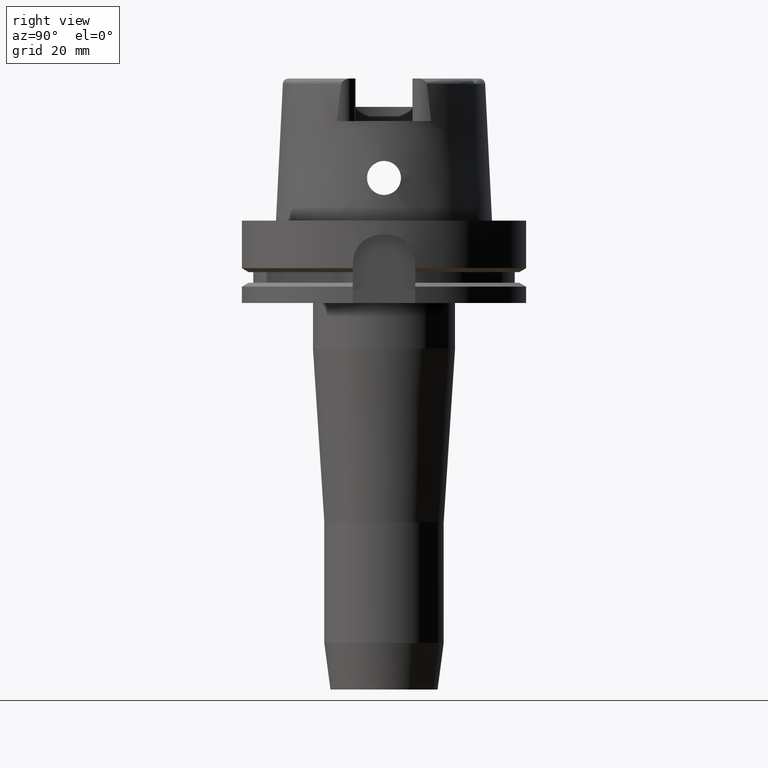
[diagram: clean part render]
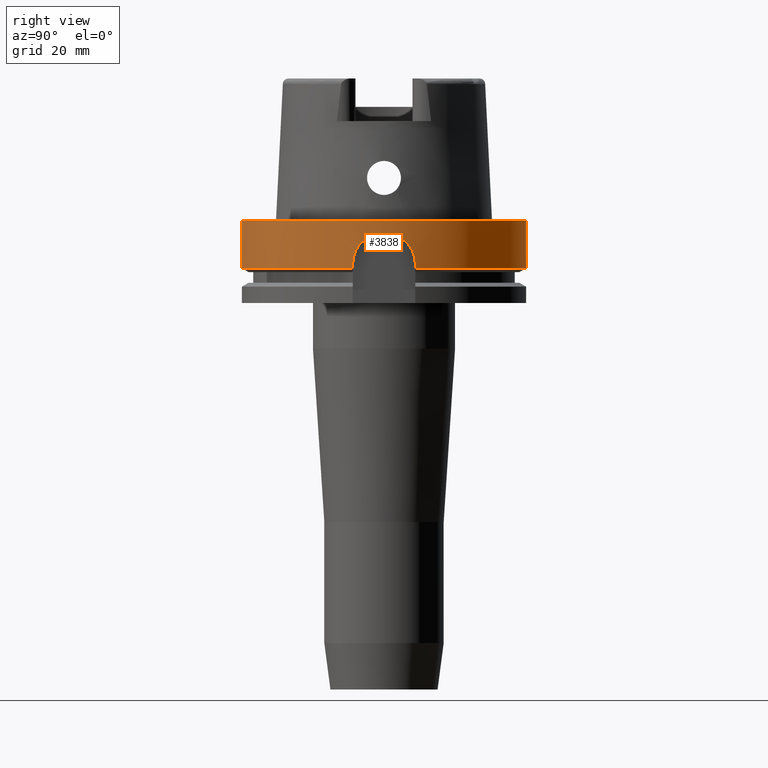
[diagram: same view with one face highlighted and labeled with its STEP entity id]
A machine part, right view. The second image highlights one B-rep face of the part: STEP entity #3838.
In plain terms, the highlighted cylindrical surface (partial cylindrical patch) has radius 50 mm, axis along (0, 0, 1).
Its self-contained STEP definition (entity closure, byte-faithful):
#1507=DIRECTION('',(0.E0,2.969006079282E-14,-1.E0));
#1508=VECTOR('',#1507,1.675240473581E1);
#1509=CARTESIAN_POINT('',(0.E0,-5.E1,0.E0));
#1510=LINE('',#1509,#1508);
#1559=CARTESIAN_POINT('',(4.877499359303E1,1.1E1,-1.675240473581E1));
#1564=CARTESIAN_POINT('',(0.E0,0.E0,-1.675240473581E1));
#1565=DIRECTION('',(0.E0,0.E0,1.E0));
#1566=DIRECTION('',(9.754998718606E-1,2.2E-1,0.E0));
#1567=AXIS2_PLACEMENT_3D('',#1564,#1565,#1566);
#1708=CARTESIAN_POINT('',(4.998999899980E1,-1.E0,-5.E0));
#1709=CARTESIAN_POINT('',(4.997502962949E1,-1.748318806849E0,-5.E0));
#1710=CARTESIAN_POINT('',(4.991282291674E1,-3.210848708994E0,
-5.162603876526E0));
#1711=CARTESIAN_POINT('',(4.972619797368E1,-5.360542516818E0,
-5.905628433817E0));
#1712=CARTESIAN_POINT('',(4.947833699748E1,-7.276984894297E0,
-7.107269275510E0));
#1713=CARTESIAN_POINT('',(4.921223922111E1,-8.879154896471E0,
-8.706220861721E0));
#1714=CARTESIAN_POINT('',(4.897561538632E1,-1.008542517917E1,
-1.061979061039E1));
#1715=CARTESIAN_POINT('',(4.881248014283E1,-1.083588691228E1,
-1.277872227288E1));
#1716=CARTESIAN_POINT('',(4.877499359303E1,-1.1E1,-1.424723863244E1));
#1717=CARTESIAN_POINT('',(4.877499359303E1,-1.1E1,-1.5E1));
#1722=DIRECTION('',(-5.027793947017E-13,6.690209687563E-14,-1.E0));
#1723=VECTOR('',#1722,1.752404735809E0);
#1724=CARTESIAN_POINT('',(4.877499359303E1,-1.1E1,-1.5E1));
#1725=LINE('',#1724,#1723);
#1729=DIRECTION('',(0.E0,-2.969006079282E-14,-1.E0));
#1730=VECTOR('',#1729,1.675240473581E1);
#1731=CARTESIAN_POINT('',(0.E0,5.E1,0.E0));
#1732=LINE('',#1731,#1730);
#1736=DIRECTION('',(4.946700496259E-13,7.095676941355E-14,1.E0));
#1737=VECTOR('',#1736,1.752404735809E0);
#1738=CARTESIAN_POINT('',(4.877499359303E1,1.1E1,-1.675240473581E1));
#1739=LINE('',#1738,#1737);
#1743=CARTESIAN_POINT('',(4.877499359303E1,1.1E1,-1.5E1));
#1744=CARTESIAN_POINT('',(4.877499359303E1,1.1E1,-1.425365513587E1));
#1745=CARTESIAN_POINT('',(4.881185785010E1,1.083857893683E1,-1.279589027066E1));
#1746=CARTESIAN_POINT('',(4.897289371045E1,1.009825143590E1,-1.064845195370E1));
#1747=CARTESIAN_POINT('',(4.920780651826E1,8.903126310452E0,-8.736917024229E0));
#1748=CARTESIAN_POINT('',(4.947350286983E1,7.309291985009E0,-7.133041447326E0));
#1749=CARTESIAN_POINT('',(4.972260453039E1,5.394314866085E0,-5.921156406450E0));
#1750=CARTESIAN_POINT('',(4.991155272931E1,3.234186037465E0,-5.166536640735E0));
#1751=CARTESIAN_POINT('',(4.997484892375E1,1.757352286679E0,-5.E0));
#1752=CARTESIAN_POINT('',(4.998999899980E1,1.E0,-5.E0));
#1757=CARTESIAN_POINT('',(0.E0,0.E0,-5.E0));
#1758=DIRECTION('',(0.E0,0.E0,1.E0));
#1759=DIRECTION('',(9.997999799960E-1,-2.E-2,0.E0));
#1760=AXIS2_PLACEMENT_3D('',#1757,#1758,#1759);
#1811=CARTESIAN_POINT('',(0.E0,0.E0,-1.675240473581E1));
#1812=DIRECTION('',(0.E0,0.E0,1.E0));
#1813=DIRECTION('',(0.E0,-1.E0,0.E0));
#1814=AXIS2_PLACEMENT_3D('',#1811,#1812,#1813);
#1965=CARTESIAN_POINT('',(0.E0,0.E0,0.E0));
#1966=DIRECTION('',(0.E0,0.E0,-1.E0));
#1967=DIRECTION('',(0.E0,1.E0,0.E0));
#1968=AXIS2_PLACEMENT_3D('',#1965,#1966,#1967);
#2514=CARTESIAN_POINT('',(0.E0,-5.E1,-1.675240473581E1));
#2515=VERTEX_POINT('',#2514);
#2516=CARTESIAN_POINT('',(4.877499359303E1,-1.1E1,-1.675240473581E1));
#2517=VERTEX_POINT('',#2516);
#2518=VERTEX_POINT('',#1559);
#2519=CARTESIAN_POINT('',(0.E0,5.E1,-1.675240473581E1));
#2520=VERTEX_POINT('',#2519);
#2522=CARTESIAN_POINT('',(0.E0,5.E1,0.E0));
#2523=VERTEX_POINT('',#2522);
#2524=CARTESIAN_POINT('',(0.E0,-5.E1,0.E0));
#2525=VERTEX_POINT('',#2524);
#2528=CARTESIAN_POINT('',(4.998999899980E1,-1.E0,-5.E0));
#2529=CARTESIAN_POINT('',(4.998999899980E1,1.E0,-5.E0));
#2530=VERTEX_POINT('',#2528);
#2531=VERTEX_POINT('',#2529);
#2532=VERTEX_POINT('',#1717);
#2533=CARTESIAN_POINT('',(4.877499359303E1,1.1E1,-1.5E1));
#2534=VERTEX_POINT('',#2533);
#3816=CARTESIAN_POINT('',(0.E0,0.E0,-1.7575E2));
#3817=DIRECTION('',(0.E0,0.E0,1.E0));
#3818=DIRECTION('',(0.E0,1.E0,0.E0));
#3819=AXIS2_PLACEMENT_3D('',#3816,#3817,#3818);
#3820=CYLINDRICAL_SURFACE('',#3819,5.E1);
#3822=ORIENTED_EDGE('',*,*,#3821,.F.);
#3824=ORIENTED_EDGE('',*,*,#3823,.T.);
#3825=ORIENTED_EDGE('',*,*,#3566,.T.);
#3827=ORIENTED_EDGE('',*,*,#3826,.F.);
#3828=ORIENTED_EDGE('',*,*,#3722,.F.);
#3830=ORIENTED_EDGE('',*,*,#3829,.F.);
#3831=ORIENTED_EDGE('',*,*,#3718,.T.);
#3832=ORIENTED_EDGE('',*,*,#3748,.F.);
#3833=ORIENTED_EDGE('',*,*,#3514,.T.);
#3835=ORIENTED_EDGE('',*,*,#3834,.T.);
#3836=EDGE_LOOP('',(#3822,#3824,#3825,#3827,#3828,#3830,#3831,#3832,#3833,
#3835));
#3837=FACE_OUTER_BOUND('',#3836,.F.);
#1568=CIRCLE('',#1567,5.E1);
#1718=B_SPLINE_CURVE_WITH_KNOTS('',3,(#1708,#1709,#1710,#1711,#1712,#1713,#1714,
#1715,#1716,#1717),.UNSPECIFIED.,.F.,.F.,(4,1,1,1,1,1,1,4),(0.E0,
1.428571428571E-1,2.857142857143E-1,4.285714285714E-1,5.714285714286E-1,
7.142857142857E-1,8.571428571429E-1,1.E0),.UNSPECIFIED.);
#1753=B_SPLINE_CURVE_WITH_KNOTS('',3,(#1743,#1744,#1745,#1746,#1747,#1748,#1749,
#1750,#1751,#1752),.UNSPECIFIED.,.F.,.F.,(4,1,1,1,1,1,1,4),(0.E0,
1.428571428571E-1,2.857142857143E-1,4.285714285714E-1,5.714285714286E-1,
7.142857142857E-1,8.571428571429E-1,1.E0),.UNSPECIFIED.);
#1761=CIRCLE('',#1760,5.E1);
#1815=CIRCLE('',#1814,5.E1);
#1969=CIRCLE('',#1968,5.E1);
#3514=EDGE_CURVE('',#2518,#2534,#1739,.T.);
#3566=EDGE_CURVE('',#2532,#2517,#1725,.T.);
#3718=EDGE_CURVE('',#2523,#2520,#1732,.T.);
#3722=EDGE_CURVE('',#2525,#2515,#1510,.T.);
#3748=EDGE_CURVE('',#2518,#2520,#1568,.T.);
#3821=EDGE_CURVE('',#2530,#2531,#1761,.T.);
#3823=EDGE_CURVE('',#2530,#2532,#1718,.T.);
#3826=EDGE_CURVE('',#2515,#2517,#1815,.T.);
#3829=EDGE_CURVE('',#2523,#2525,#1969,.T.);
#3834=EDGE_CURVE('',#2534,#2531,#1753,.T.);
#3838=ADVANCED_FACE('',(#3837),#3820,.T.);